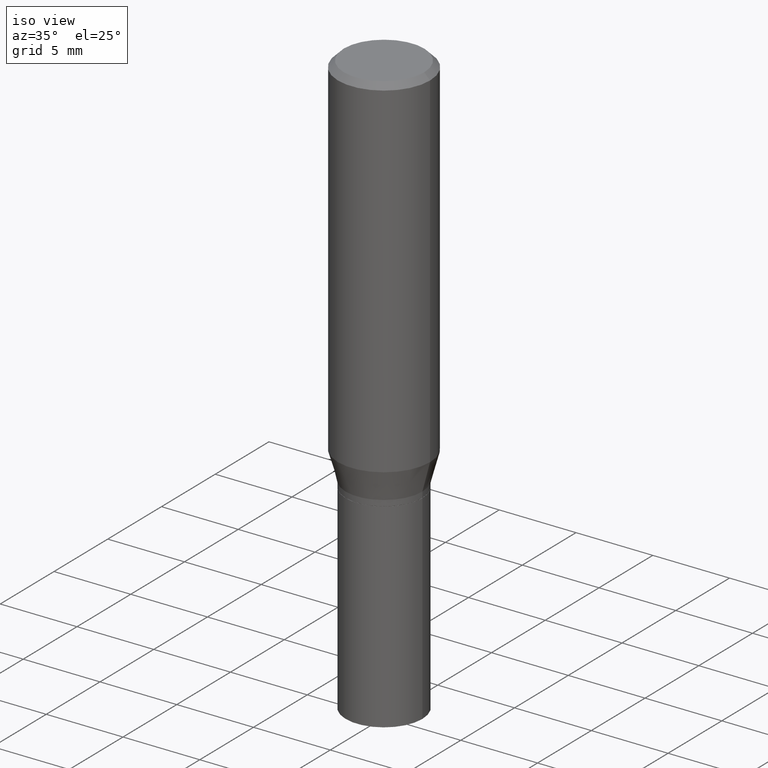
[diagram: clean part render]
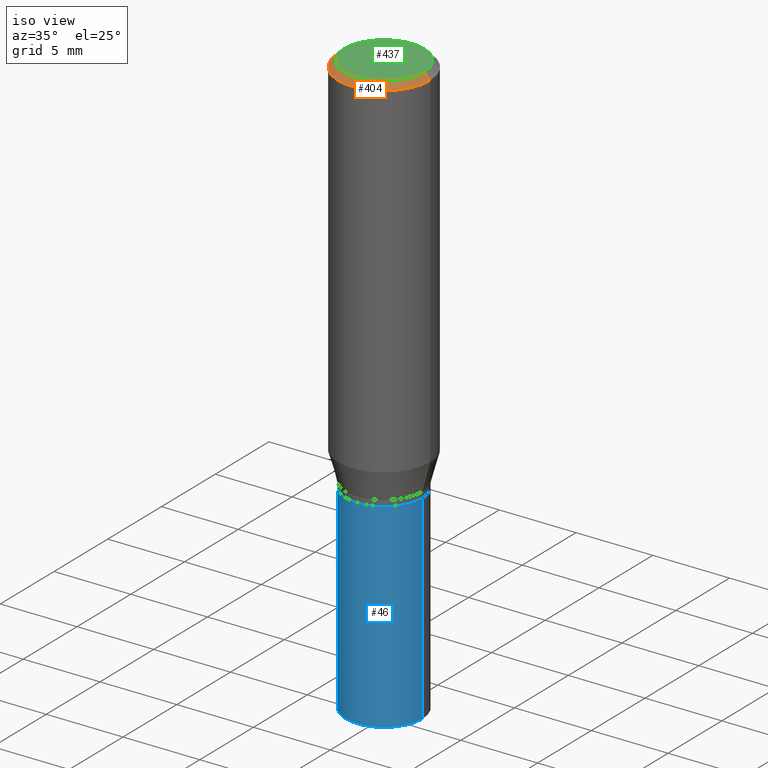
[diagram: same view with three faces highlighted in distinct colors, each labeled with its STEP entity id]
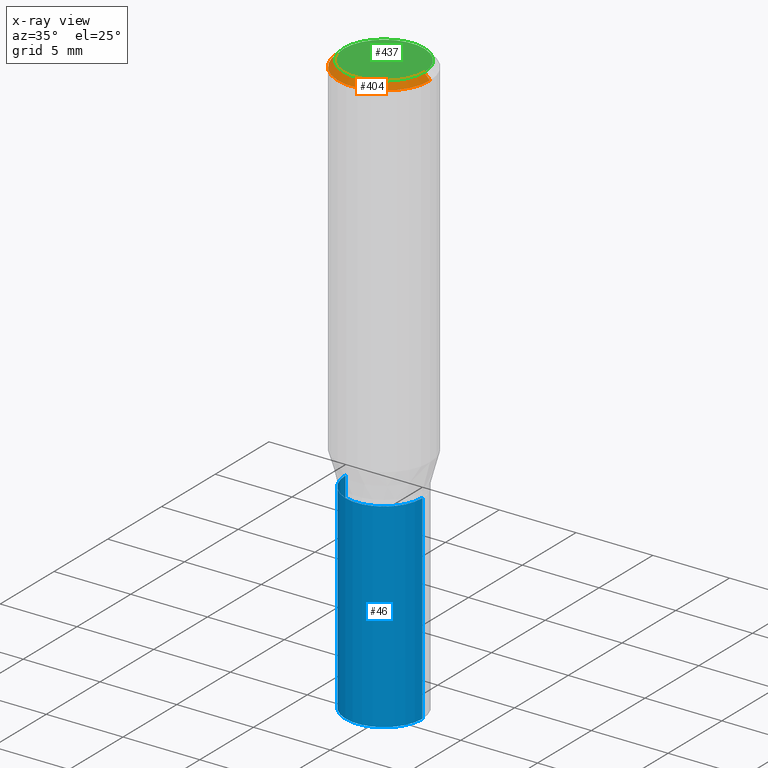
[diagram: x-ray of the same camera — body ghosted, the three highlighted faces saturated]
A machine part, iso view with three faces highlighted in distinct colors.
The next image is the same camera in x-ray (body ghosted, the three faces saturated) — at least one of them is partly hidden behind the body in this view.
Their STEP definitions:

[orange] entity #404 — the highlighted conical surface has half-angle 45 deg.
#3 = AXIS2_PLACEMENT_3D ( 'NONE', #118, #369, #191 ) ;
#4 = CIRCLE ( 'NONE', #10, 0.1030999999999999833 ) ;
#10 = AXIS2_PLACEMENT_3D ( 'NONE', #273, #454, #458 ) ;
#12 = DIRECTION ( 'NONE',  ( 0.7071067811865500152, -7.319954787623263934E-15, -0.7071067811865450192 ) ) ;
#13 = CARTESIAN_POINT ( 'NONE',  ( -0.1030999999999999833, 7.461295621107773480E-16, -6.716606437695998257E-17 ) ) ;
#23 = EDGE_LOOP ( 'NONE', ( #202, #406, #351, #205 ) ) ;
#31 = VERTEX_POINT ( 'NONE', #186 ) ;
#81 = AXIS2_PLACEMENT_3D ( 'NONE', #352, #103, #415 ) ;
#84 = CARTESIAN_POINT ( 'NONE',  ( 0.1180999999999999966, -8.625970336194650129E-16, -0.01499999999999996995 ) ) ;
#103 = DIRECTION ( 'NONE',  ( 2.445468806185136597E-29, -3.491481338843145583E-15, -1.000000000000000000 ) ) ;
#118 = CARTESIAN_POINT ( 'NONE',  ( 3.668203209277697643E-31, -5.237222008264707922E-17, -0.01499999999999996995 ) ) ;
#130 = FACE_OUTER_BOUND ( 'NONE', #23, .T. ) ;
#146 = EDGE_CURVE ( 'NONE', #31, #200, #185, .T. ) ;
#169 = DIRECTION ( 'NONE',  ( -0.7071067811865500152, 2.468850131082282699E-15, -0.7071067811865450192 ) ) ;
#185 = CIRCLE ( 'NONE', #3, 0.1180999999999999966 ) ;
#186 = CARTESIAN_POINT ( 'NONE',  ( -0.1180999999999999966, -7.576172704597157638E-16, -0.01499999999999996995 ) ) ;
#191 = DIRECTION ( 'NONE',  ( 1.000000000000000000, -6.982962677686266711E-15, 0.000000000000000000 ) ) ;
#200 = VERTEX_POINT ( 'NONE', #338 ) ;
#202 = ORIENTED_EDGE ( 'NONE', *, *, #211, .F. ) ;
#205 = ORIENTED_EDGE ( 'NONE', *, *, #146, .T. ) ;
#211 = EDGE_CURVE ( 'NONE', #424, #200, #336, .T. ) ;
#221 = VERTEX_POINT ( 'NONE', #13 ) ;
#249 = CARTESIAN_POINT ( 'NONE',  ( 0.1030999999999999833, -7.849571885948550734E-16, -6.716606437694960412E-17 ) ) ;
#273 = CARTESIAN_POINT ( 'NONE',  ( 1.642525152680658333E-45, -2.345090603756752382E-31, -6.716606437695485497E-17 ) ) ;
#288 = EDGE_CURVE ( 'NONE', #221, #424, #4, .T. ) ;
#290 = VECTOR ( 'NONE', #169, 39.37007874015748143 ) ;
#314 = CONICAL_SURFACE ( 'NONE', #81, 0.1180999999999999966, 0.7853981633974518317 ) ;
#315 = LINE ( 'NONE', #383, #290 ) ;
#336 = LINE ( 'NONE', #84, #407 ) ;
#338 = CARTESIAN_POINT ( 'NONE',  ( 0.1180999999999999966, -8.770601123173952432E-16, -0.01499999999999996995 ) ) ;
#340 = EDGE_CURVE ( 'NONE', #221, #31, #315, .T. ) ;
#351 = ORIENTED_EDGE ( 'NONE', *, *, #340, .T. ) ;
#352 = CARTESIAN_POINT ( 'NONE',  ( 3.668203209277697643E-31, -5.237222008264707922E-17, -0.01499999999999996995 ) ) ;
#369 = DIRECTION ( 'NONE',  ( -2.445468806185136597E-29, 3.491481338843145583E-15, 1.000000000000000000 ) ) ;
#383 = CARTESIAN_POINT ( 'NONE',  ( -0.1180999999999999966, 7.723156721521009862E-16, -0.01499999999999996995 ) ) ;
#404 = ADVANCED_FACE ( 'NONE', ( #130 ), #314, .T. ) ;
#406 = ORIENTED_EDGE ( 'NONE', *, *, #288, .F. ) ;
#407 = VECTOR ( 'NONE', #12, 39.37007874015748143 ) ;
#415 = DIRECTION ( 'NONE',  ( -1.000000000000000000, 6.982962677686266711E-15, 0.000000000000000000 ) ) ;
#424 = VERTEX_POINT ( 'NONE', #249 ) ;
#454 = DIRECTION ( 'NONE',  ( -2.445468806185136597E-29, 3.491481338843145583E-15, 1.000000000000000000 ) ) ;
#458 = DIRECTION ( 'NONE',  ( 1.000000000000000000, -6.982962677686268288E-15, 4.875976817586845596E-29 ) ) ;

[blue] entity #46 — the highlighted cylindrical surface (partial cylindrical patch) has radius 2.5006 mm, axis along (-0, 0, 1).
#7 = LINE ( 'NONE', #446, #15 ) ;
#15 = VECTOR ( 'NONE', #409, 39.37007874015748143 ) ;
#26 = CIRCLE ( 'NONE', #349, 0.09844999999999999585 ) ;
#27 = DIRECTION ( 'NONE',  ( -2.445468806185136877E-29, 3.491481338843145188E-15, 1.000000000000000000 ) ) ;
#46 = ADVANCED_FACE ( 'NONE', ( #107 ), #108, .T. ) ;
#107 = FACE_OUTER_BOUND ( 'NONE', #431, .T. ) ;
#108 = CYLINDRICAL_SURFACE ( 'NONE', #422, 0.09844999999999999585 ) ;
#112 = EDGE_CURVE ( 'NONE', #176, #343, #7, .T. ) ;
#120 = ORIENTED_EDGE ( 'NONE', *, *, #112, .F. ) ;
#150 = CARTESIAN_POINT ( 'NONE',  ( 0.09844999999999999585, -4.137754534663009475E-15, -0.9882000000000000783 ) ) ;
#176 = VERTEX_POINT ( 'NONE', #265 ) ;
#181 = DIRECTION ( 'NONE',  ( 1.000000000000000000, -6.982962677686266711E-15, 4.876176775795936353E-29 ) ) ;
#189 = EDGE_CURVE ( 'NONE', #176, #345, #26, .T. ) ;
#193 = DIRECTION ( 'NONE',  ( 1.000000000000000000, -6.982962677686265922E-15, 0.000000000000000000 ) ) ;
#201 = CARTESIAN_POINT ( 'NONE',  ( 0.09844999999999999585, -6.874726756182129545E-16, 4.800596035771099214E-30 ) ) ;
#210 = ORIENTED_EDGE ( 'NONE', *, *, #411, .F. ) ;
#238 = ORIENTED_EDGE ( 'NONE', *, *, #189, .T. ) ;
#244 = LINE ( 'NONE', #201, #246 ) ;
#245 = ORIENTED_EDGE ( 'NONE', *, *, #307, .T. ) ;
#246 = VECTOR ( 'NONE', #27, 39.37007874015748143 ) ;
#250 = CARTESIAN_POINT ( 'NONE',  ( 0.000000000000000000, 0.000000000000000000, 0.000000000000000000 ) ) ;
#265 = CARTESIAN_POINT ( 'NONE',  ( -0.09844999999999999585, -3.644222610298939041E-15, -1.500000000000000222 ) ) ;
#279 = DIRECTION ( 'NONE',  ( -2.445468806185136597E-29, 3.491481338843145583E-15, 1.000000000000000000 ) ) ;
#296 = CIRCLE ( 'NONE', #464, 0.09844999999999999585 ) ;
#301 = CARTESIAN_POINT ( 'NONE',  ( 3.668203209277704895E-29, -5.237222008264718177E-15, -1.500000000000000222 ) ) ;
#307 = EDGE_CURVE ( 'NONE', #345, #456, #244, .T. ) ;
#317 = CARTESIAN_POINT ( 'NONE',  ( 2.416612274272152255E-29, -3.450281859044796915E-15, -0.9882000000000000783 ) ) ;
#343 = VERTEX_POINT ( 'NONE', #413 ) ;
#345 = VERTEX_POINT ( 'NONE', #379 ) ;
#349 = AXIS2_PLACEMENT_3D ( 'NONE', #301, #375, #193 ) ;
#363 = DIRECTION ( 'NONE',  ( -2.445468806185136597E-29, 3.491481338843145583E-15, 1.000000000000000000 ) ) ;
#375 = DIRECTION ( 'NONE',  ( -2.445468806185136597E-29, 3.491481338843145583E-15, 1.000000000000000000 ) ) ;
#379 = CARTESIAN_POINT ( 'NONE',  ( 0.09844999999999999585, -5.924694683882931526E-15, -1.500000000000000222 ) ) ;
#409 = DIRECTION ( 'NONE',  ( -2.445468806185136877E-29, 3.491481338843145188E-15, 1.000000000000000000 ) ) ;
#411 = EDGE_CURVE ( 'NONE', #343, #456, #296, .T. ) ;
#413 = CARTESIAN_POINT ( 'NONE',  ( -0.09844999999999999585, -3.644222610298939041E-15, -0.9882000000000000783 ) ) ;
#421 = DIRECTION ( 'NONE',  ( 1.000000000000000000, -6.982962677686265922E-15, 0.000000000000000000 ) ) ;
#422 = AXIS2_PLACEMENT_3D ( 'NONE', #250, #363, #181 ) ;
#431 = EDGE_LOOP ( 'NONE', ( #120, #238, #245, #210 ) ) ;
#446 = CARTESIAN_POINT ( 'NONE',  ( -0.09844999999999999585, 6.995293233558186035E-16, -4.842691596355954042E-30 ) ) ;
#456 = VERTEX_POINT ( 'NONE', #150 ) ;
#464 = AXIS2_PLACEMENT_3D ( 'NONE', #317, #279, #421 ) ;

[green] entity #437 — the highlighted planar face has unit normal (0, -0, -1).
#4 = CIRCLE ( 'NONE', #10, 0.1030999999999999833 ) ;
#10 = AXIS2_PLACEMENT_3D ( 'NONE', #273, #454, #458 ) ;
#13 = CARTESIAN_POINT ( 'NONE',  ( -0.1030999999999999833, 7.461295621107773480E-16, -6.716606437695998257E-17 ) ) ;
#58 = AXIS2_PLACEMENT_3D ( 'NONE', #247, #74, #209 ) ;
#74 = DIRECTION ( 'NONE',  ( 2.438088387897960049E-29, -3.491481338843145188E-15, -1.000000000000000000 ) ) ;
#142 = CIRCLE ( 'NONE', #359, 0.1030999999999999833 ) ;
#166 = DIRECTION ( 'NONE',  ( -2.445468806185136597E-29, 3.491481338843145583E-15, 1.000000000000000000 ) ) ;
#182 = FACE_OUTER_BOUND ( 'NONE', #327, .T. ) ;
#209 = DIRECTION ( 'NONE',  ( -1.000000000000000000, 6.982962677686265922E-15, -4.876176775795935793E-29 ) ) ;
#221 = VERTEX_POINT ( 'NONE', #13 ) ;
#247 = CARTESIAN_POINT ( 'NONE',  ( 7.199434520694539070E-16, 0.1030999999999999833, -3.935547582232057245E-16 ) ) ;
#249 = CARTESIAN_POINT ( 'NONE',  ( 0.1030999999999999833, -7.849571885948550734E-16, -6.716606437694960412E-17 ) ) ;
#273 = CARTESIAN_POINT ( 'NONE',  ( 1.642525152680658333E-45, -2.345090603756752382E-31, -6.716606437695485497E-17 ) ) ;
#277 = CARTESIAN_POINT ( 'NONE',  ( 1.642525152680658333E-45, -2.345090603756752382E-31, -6.716606437695485497E-17 ) ) ;
#283 = PLANE ( 'NONE',  #58 ) ;
#288 = EDGE_CURVE ( 'NONE', #221, #424, #4, .T. ) ;
#294 = EDGE_CURVE ( 'NONE', #424, #221, #142, .T. ) ;
#327 = EDGE_LOOP ( 'NONE', ( #418, #450 ) ) ;
#359 = AXIS2_PLACEMENT_3D ( 'NONE', #277, #166, #419 ) ;
#418 = ORIENTED_EDGE ( 'NONE', *, *, #288, .T. ) ;
#419 = DIRECTION ( 'NONE',  ( 1.000000000000000000, -6.982962677686268288E-15, 4.875976817586845596E-29 ) ) ;
#424 = VERTEX_POINT ( 'NONE', #249 ) ;
#437 = ADVANCED_FACE ( 'NONE', ( #182 ), #283, .F. ) ;
#450 = ORIENTED_EDGE ( 'NONE', *, *, #294, .T. ) ;
#454 = DIRECTION ( 'NONE',  ( -2.445468806185136597E-29, 3.491481338843145583E-15, 1.000000000000000000 ) ) ;
#458 = DIRECTION ( 'NONE',  ( 1.000000000000000000, -6.982962677686268288E-15, 4.875976817586845596E-29 ) ) ;